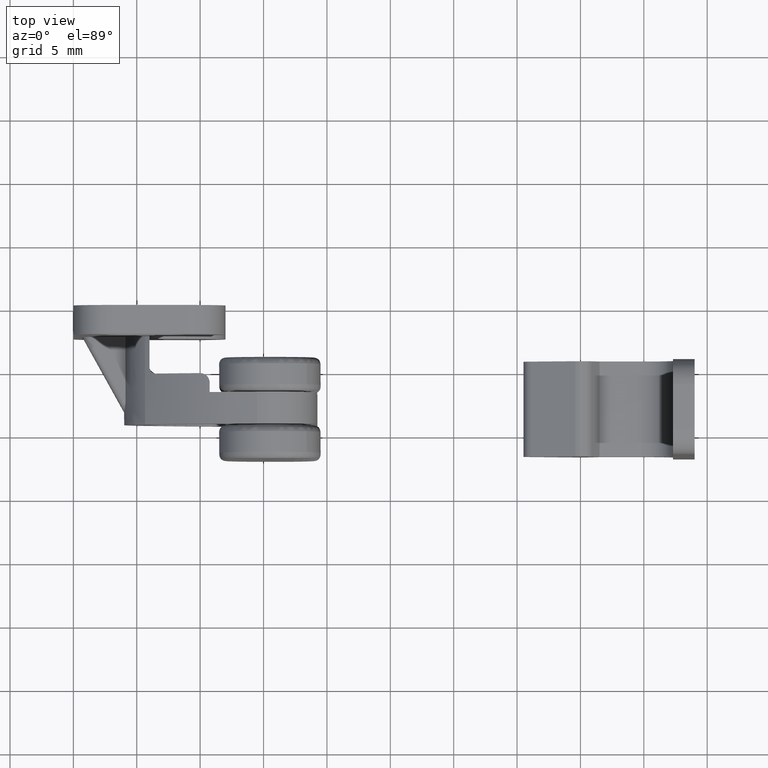
[diagram: clean part render]
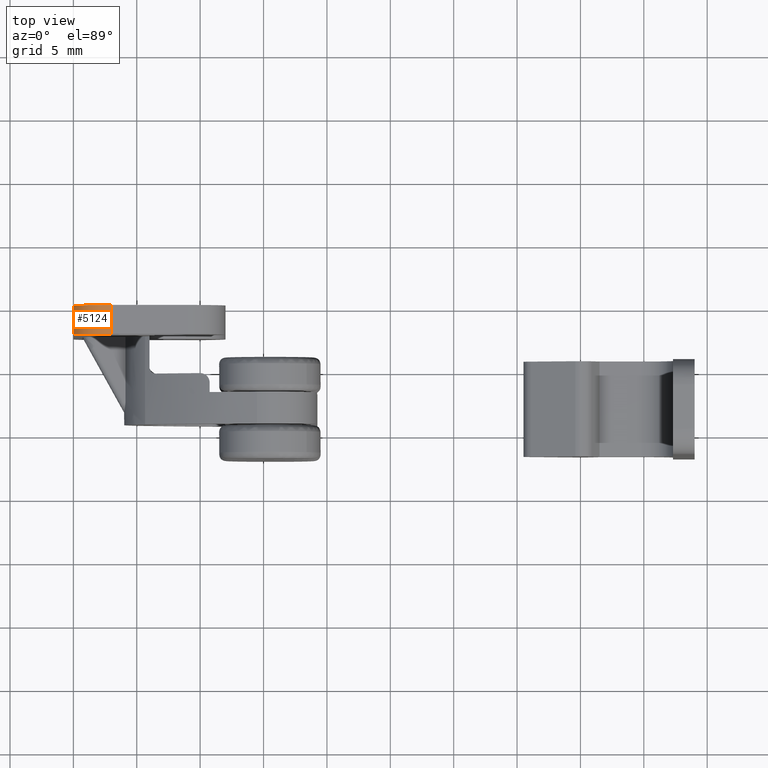
[diagram: same view with one face highlighted and labeled with its STEP entity id]
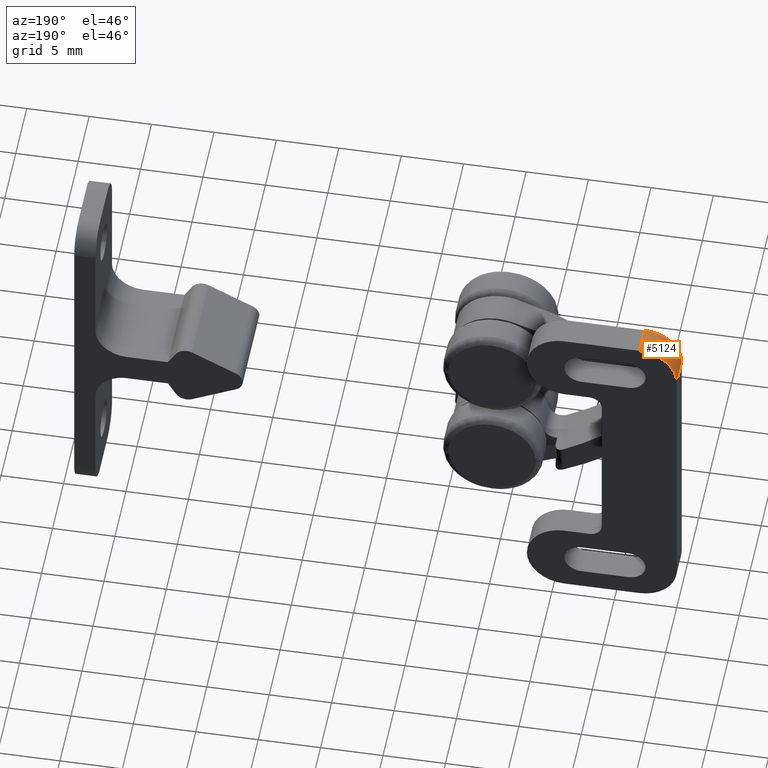
[diagram: same view with one face highlighted and labeled with its STEP entity id]
A machine part, top view. The second image highlights one B-rep face of the part: STEP entity #5124.
A second angle (auxiliary view) of the same face is appended — the face is thin or edge-on in the first view.
In plain terms, the highlighted face is a freeform B-spline surface patch.
Its self-contained STEP definition (entity closure, byte-faithful):
#5047=CARTESIAN_POINT('',(0.0,0.0,10.750000000000000));
#5048=VERTEX_POINT('',#5047);
#5055=CARTESIAN_POINT('',(0.0,-2.299999999999970,10.750000000000000));
#5056=VERTEX_POINT('',#5055);
#5062=CARTESIAN_POINT('',(0.0,-2.299999999999970,10.750000000000000));
#5063=CARTESIAN_POINT('',(0.0,0.0,10.750000000000000));
#5064=QUASI_UNIFORM_CURVE('',1,(#5062,#5063),.UNSPECIFIED.,.F.,.U.);
#5065=EDGE_CURVE('',#5056,#5048,#5064,.T.);
#5070=CARTESIAN_POINT('',(3.078530844923624,-2.357499999999969,13.748971974926670));
#5071=CARTESIAN_POINT('',(3.078530844923624,0.058937499999999,13.748971974926670));
#5072=CARTESIAN_POINT('',(-0.194272765782355,-2.357499999999970,13.834673353587975));
#5073=CARTESIAN_POINT('',(-0.194272765782355,0.058937499999999,13.834673353587975));
#5074=CARTESIAN_POINT('',(0.005595604734397,-2.357499999999969,10.566854381395430));
#5075=CARTESIAN_POINT('',(0.005595604734397,0.058937499999999,10.566854381395430));
#5083=(BOUNDED_SURFACE()B_SPLINE_SURFACE(1,2,((#5070,#5072,#5074),(#5071,#5073,#5075)),.UNSPECIFIED.,.F.,.F.,.U.)B_SPLINE_SURFACE_WITH_KNOTS((2,2),(3,3),(0.0,2.416437499999968),(0.0,5.280126370702002),.UNSPECIFIED.)GEOMETRIC_REPRESENTATION_ITEM()RATIONAL_B_SPLINE_SURFACE(((1.0,0.675590207615660,1.0),(1.0,0.675590207615660,1.0)))REPRESENTATION_ITEM('')SURFACE());
#5084=CARTESIAN_POINT('',(3.0,0.0,13.750000000000000));
#5085=VERTEX_POINT('',#5084);
#5086=CARTESIAN_POINT('',(3.0,0.0,13.750000000000000));
#5087=CARTESIAN_POINT('',(2.680901671747285,0.0,13.750187042192200));
#5088=CARTESIAN_POINT('',(2.251504306489252,0.0,13.680829621415199));
#5089=CARTESIAN_POINT('',(1.702407185686409,0.0,13.465075958080210));
#5090=CARTESIAN_POINT('',(1.326205948061638,0.0,13.255005210926750));
#5091=CARTESIAN_POINT('',(0.862527898087509,0.0,12.888651343588000));
#5092=CARTESIAN_POINT('',(0.454005742920793,0.0,12.390868887811720));
#5093=CARTESIAN_POINT('',(0.197569973874641,0.0,11.856993369551899));
#5094=CARTESIAN_POINT('',(0.040275920560987,0.0,11.326753455954520));
#5095=CARTESIAN_POINT('',(-0.000057357403526,0.0,10.983170476387100));
#5096=CARTESIAN_POINT('',(0.0,0.0,10.750000000000000));
#5097=B_SPLINE_CURVE_WITH_KNOTS('',3,(#5086,#5087,#5088,#5089,#5090,#5091,#5092,#5093,#5094,#5095,#5096),.UNSPECIFIED.,.F.,.U.,(4,1,1,1,1,1,1,1,4),(0.000000048601199,0.957209272491482,1.288553905037728,1.767160895015686,2.245775818911043,3.055707058503179,3.681579632680929,4.012920787176886,4.712418548627663),.UNSPECIFIED.);
#5098=EDGE_CURVE('',#5085,#5048,#5097,.T.);
#5099=ORIENTED_EDGE('',*,*,#5098,.T.);
#5100=ORIENTED_EDGE('',*,*,#5065,.F.);
#5101=CARTESIAN_POINT('',(3.0,-2.299999999999970,13.750000000000000));
#5102=VERTEX_POINT('',#5101);
#5103=CARTESIAN_POINT('',(3.0,-2.299999999999970,13.750000000000000));
#5104=CARTESIAN_POINT('',(2.680901671736421,-2.299999999999968,13.750187042172580));
#5105=CARTESIAN_POINT('',(2.251504306527658,-2.299999999999972,13.680829621484630));
#5106=CARTESIAN_POINT('',(1.702407185537509,-2.299999999999967,13.465075957810811));
#5107=CARTESIAN_POINT('',(1.326195493578856,-2.299999999999979,13.255014569107839));
#5108=CARTESIAN_POINT('',(0.968839412968176,-2.299999999999958,12.972562399876541));
#5109=CARTESIAN_POINT('',(0.598034363813504,-2.299999999999967,12.578354727148650));
#5110=CARTESIAN_POINT('',(0.280511953612419,-2.299999999999985,12.076953707286830));
#5111=CARTESIAN_POINT('',(0.051766567715221,-2.299999999999972,11.424930028885610));
#5112=CARTESIAN_POINT('',(-0.000043871308898,-2.299999999999968,10.983168305606050));
#5113=CARTESIAN_POINT('',(0.0,-2.299999999999970,10.750000000000000));
#5114=B_SPLINE_CURVE_WITH_KNOTS('',3,(#5103,#5104,#5105,#5106,#5107,#5108,#5109,#5110,#5111,#5112,#5113),.UNSPECIFIED.,.F.,.U.,(4,1,1,1,1,1,1,1,4),(0.000000048601199,0.957209272491482,1.288553905037728,1.767160895015686,2.245775818911043,2.650733836835076,3.387048212998030,4.012920787176886,4.712418548627663),.UNSPECIFIED.);
#5115=EDGE_CURVE('',#5102,#5056,#5114,.T.);
#5116=ORIENTED_EDGE('',*,*,#5115,.F.);
#5117=CARTESIAN_POINT('',(3.0,-2.299999999999970,13.750000000000000));
#5118=CARTESIAN_POINT('',(3.0,0.0,13.750000000000000));
#5119=QUASI_UNIFORM_CURVE('',1,(#5117,#5118),.UNSPECIFIED.,.F.,.U.);
#5120=EDGE_CURVE('',#5102,#5085,#5119,.T.);
#5121=ORIENTED_EDGE('',*,*,#5120,.T.);
#5122=EDGE_LOOP('',(#5099,#5100,#5116,#5121));
#5123=FACE_OUTER_BOUND('',#5122,.T.);
#5124=ADVANCED_FACE('',(#5123),#5083,.T.);